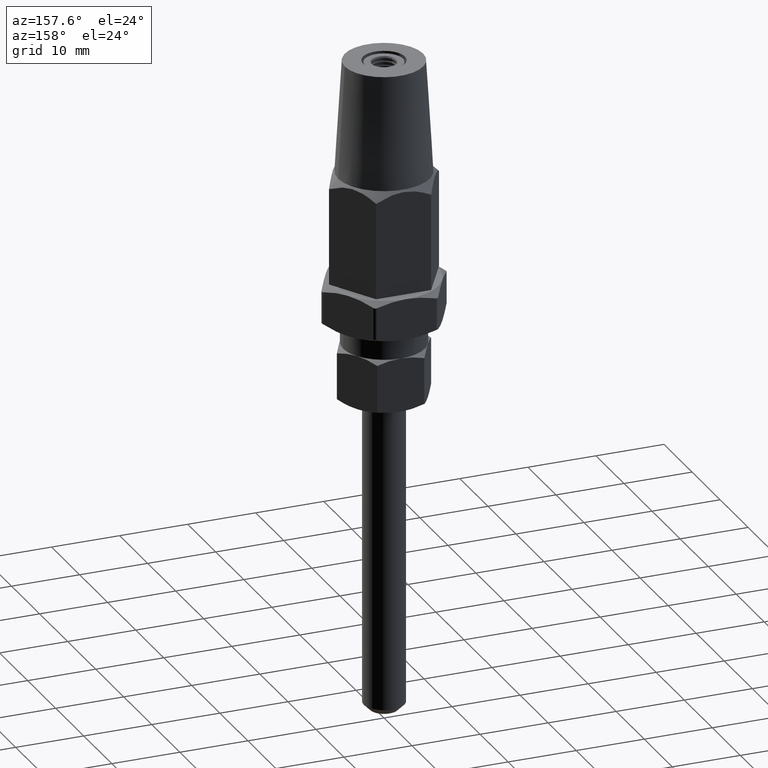
[diagram: clean part render]
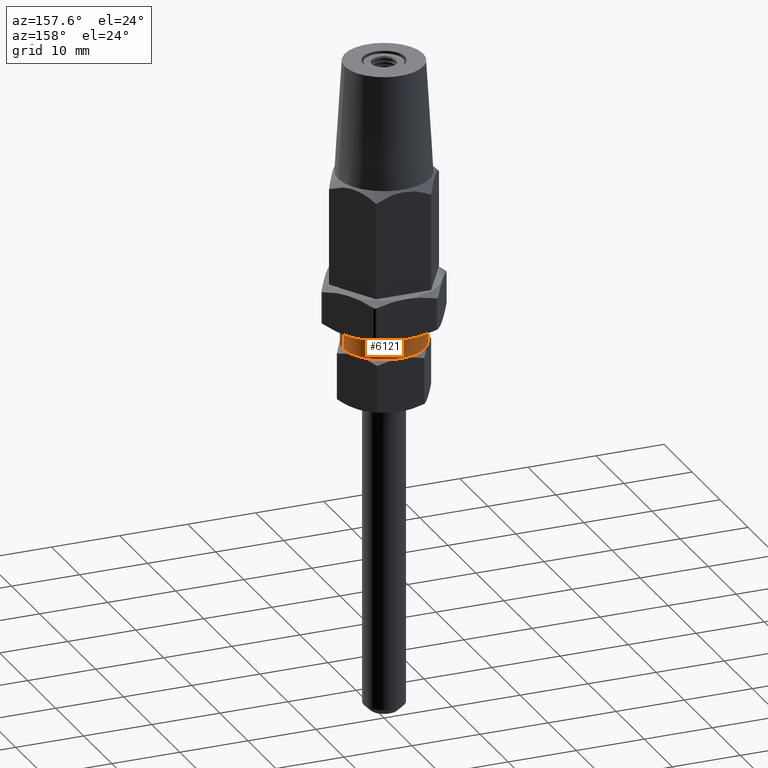
[diagram: same view with one face highlighted and labeled with its STEP entity id]
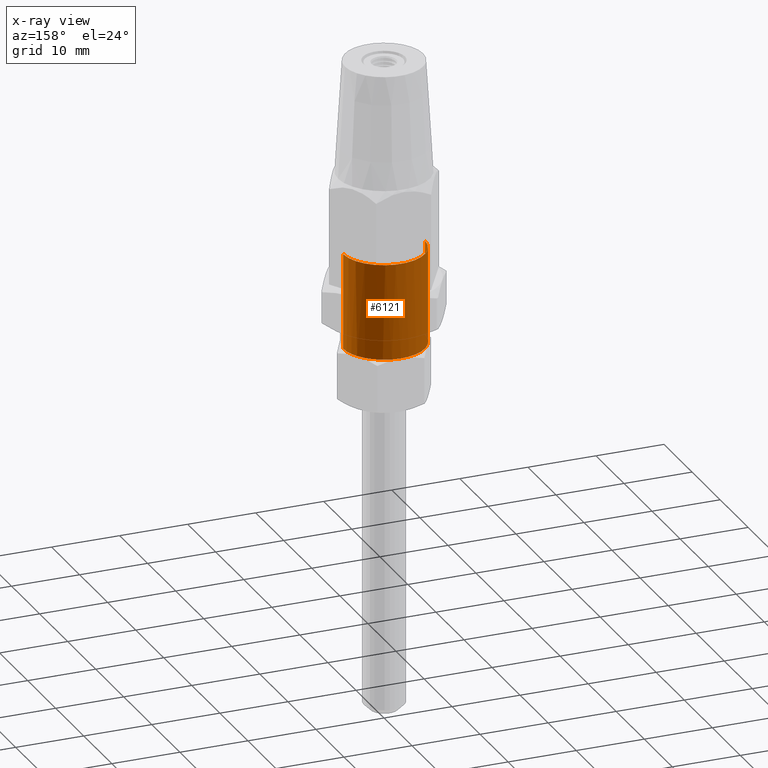
[diagram: x-ray of the same camera — body ghosted, the highlighted face saturated]
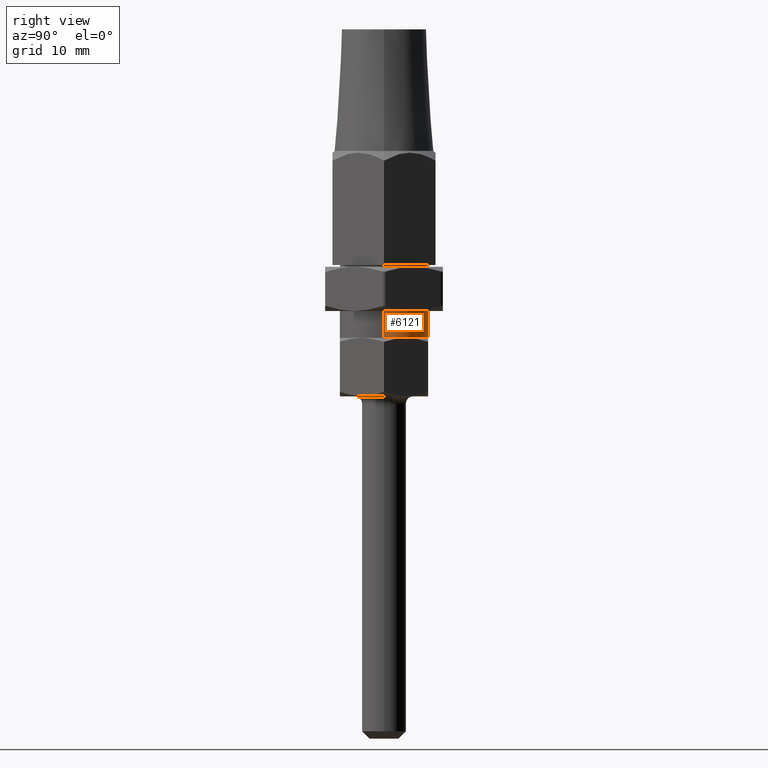
[diagram: same view with one face highlighted and labeled with its STEP entity id]
A machine part, auxiliary view. The second image highlights one B-rep face of the part: STEP entity #6121.
The next image is the same camera in x-ray: the body ghosted, the highlighted face saturated — about 0% of this face is hidden behind the body in this view.
A second angle (right view) of the same face is appended — the face is thin or edge-on in the first view.
In plain terms, the highlighted cylindrical surface (partial cylindrical patch) has radius 6 mm, axis along (0, 0, 1).
Its self-contained STEP definition (entity closure, byte-faithful):
#48 = CARTESIAN_POINT ( 'NONE',  ( -5.196152422706632900, 2.999999999999999600, 3.942264973081039500 ) ) ;
#390 = AXIS2_PLACEMENT_3D ( 'NONE', #5920, #7233, #1737 ) ;
#551 = DIRECTION ( 'NONE',  ( 1.000000000000000000, 0.0000000000000000000, 0.0000000000000000000 ) ) ;
#608 = CARTESIAN_POINT ( 'NONE',  ( 0.0000000000000000000, -9.080037353748498200E-016, 3.942264973081038600 ) ) ;
#1737 = DIRECTION ( 'NONE',  ( 1.000000000000000000, 0.0000000000000000000, 0.0000000000000000000 ) ) ;
#2018 = AXIS2_PLACEMENT_3D ( 'NONE', #12012, #13578, #9437 ) ;
#2391 = DIRECTION ( 'NONE',  ( 0.0000000000000000000, -2.303253945574359900E-016, 1.000000000000000000 ) ) ;
#2488 = DIRECTION ( 'NONE',  ( 0.0000000000000000000, 0.0000000000000000000, 1.000000000000000000 ) ) ;
#2751 = CARTESIAN_POINT ( 'NONE',  ( 5.196152422706631100, 3.000000000000001800, 3.942264973081039500 ) ) ;
#2947 = CARTESIAN_POINT ( 'NONE',  ( -6.000000000000000900, 7.347880794884119700E-016, 17.99999999991541700 ) ) ;
#4022 = EDGE_CURVE ( 'NONE', #9147, #5969, #16246, .T. ) ;
#4419 = CIRCLE ( 'NONE', #11511, 6.000000000000000900 ) ;
#4733 = ORIENTED_EDGE ( 'NONE', *, *, #12068, .T. ) ;
#4766 = LINE ( 'NONE', #13563, #17383 ) ;
#5069 = CARTESIAN_POINT ( 'NONE',  ( -6.000000000000000900, 7.347880794884119700E-016, -500000.0000000000600 ) ) ;
#5092 = EDGE_CURVE ( 'NONE', #17353, #9147, #4419, .T. ) ;
#5341 = DIRECTION ( 'NONE',  ( 0.0000000000000000000, 0.0000000000000000000, 1.000000000000000000 ) ) ;
#5920 = CARTESIAN_POINT ( 'NONE',  ( 0.0000000000000000000, 0.0000000000000000000, -500000.0000000000600 ) ) ;
#5956 = DIRECTION ( 'NONE',  ( 0.0000000000000000000, 1.000000000000000000, 2.891205793294677800E-016 ) ) ;
#5969 = VERTEX_POINT ( 'NONE', #2947 ) ;
#6028 = DIRECTION ( 'NONE',  ( 0.0000000000000000000, 1.000000000000000000, 2.891205793294677800E-016 ) ) ;
#6121 = ADVANCED_FACE ( 'NONE', ( #14634 ), #15240, .T. ) ;
#6143 = CIRCLE ( 'NONE', #8558, 6.000000000000000900 ) ;
#6269 = ORIENTED_EDGE ( 'NONE', *, *, #5092, .T. ) ;
#6284 = EDGE_CURVE ( 'NONE', #5969, #10692, #10104, .T. ) ;
#6436 = ORIENTED_EDGE ( 'NONE', *, *, #16396, .F. ) ;
#7233 = DIRECTION ( 'NONE',  ( 0.0000000000000000000, 0.0000000000000000000, 1.000000000000000000 ) ) ;
#7802 = CARTESIAN_POINT ( 'NONE',  ( 0.0000000000000000000, -9.080037353748498200E-016, 3.942264973081038600 ) ) ;
#8034 = DIRECTION ( 'NONE',  ( 1.776356839400250500E-015, 1.000000000000000000, 2.891205793294677800E-016 ) ) ;
#8043 = AXIS2_PLACEMENT_3D ( 'NONE', #11457, #13019, #551 ) ;
#8540 = EDGE_CURVE ( 'NONE', #13491, #14242, #13926, .T. ) ;
#8558 = AXIS2_PLACEMENT_3D ( 'NONE', #7802, #2391, #8034 ) ;
#9147 = VERTEX_POINT ( 'NONE', #14077 ) ;
#9201 = VERTEX_POINT ( 'NONE', #16186 ) ;
#9437 = DIRECTION ( 'NONE',  ( -8.881784197001252300E-016, 1.000000000000000000, 2.891205793294677800E-016 ) ) ;
#9975 = AXIS2_PLACEMENT_3D ( 'NONE', #608, #17077, #5956 ) ;
#10104 = CIRCLE ( 'NONE', #8043, 6.000000000000000900 ) ;
#10659 = EDGE_CURVE ( 'NONE', #9201, #13491, #6143, .T. ) ;
#10692 = VERTEX_POINT ( 'NONE', #12028 ) ;
#10787 = ORIENTED_EDGE ( 'NONE', *, *, #6284, .T. ) ;
#11457 = CARTESIAN_POINT ( 'NONE',  ( 0.0000000000000000000, 0.0000000000000000000, 17.99999999991541700 ) ) ;
#11511 = AXIS2_PLACEMENT_3D ( 'NONE', #11553, #15845, #6028 ) ;
#11553 = CARTESIAN_POINT ( 'NONE',  ( 0.0000000000000000000, -9.080037353748498200E-016, 3.942264973081038600 ) ) ;
#12012 = CARTESIAN_POINT ( 'NONE',  ( 0.0000000000000000000, -9.080037353748498200E-016, 3.942264973081038600 ) ) ;
#12028 = CARTESIAN_POINT ( 'NONE',  ( 6.000000000000000900, 0.0000000000000000000, 17.99999999991541700 ) ) ;
#12068 = EDGE_CURVE ( 'NONE', #14242, #17353, #16576, .T. ) ;
#12916 = CARTESIAN_POINT ( 'NONE',  ( -7.511572997462304000E-016, 5.999999999999999100, 3.942264973081040400 ) ) ;
#13019 = DIRECTION ( 'NONE',  ( 0.0000000000000000000, 0.0000000000000000000, -1.000000000000000000 ) ) ;
#13484 = ORIENTED_EDGE ( 'NONE', *, *, #4022, .T. ) ;
#13491 = VERTEX_POINT ( 'NONE', #2751 ) ;
#13563 = CARTESIAN_POINT ( 'NONE',  ( 6.000000000000000900, 0.0000000000000000000, -500000.0000000000600 ) ) ;
#13578 = DIRECTION ( 'NONE',  ( 0.0000000000000000000, -2.303253945574359900E-016, 1.000000000000000000 ) ) ;
#13926 = CIRCLE ( 'NONE', #2018, 6.000000000000000900 ) ;
#14077 = CARTESIAN_POINT ( 'NONE',  ( -6.000000000000000900, 7.347880794884122700E-016, 3.942264973081038600 ) ) ;
#14242 = VERTEX_POINT ( 'NONE', #12916 ) ;
#14402 = ORIENTED_EDGE ( 'NONE', *, *, #10659, .T. ) ;
#14634 = FACE_OUTER_BOUND ( 'NONE', #14939, .T. ) ;
#14939 = EDGE_LOOP ( 'NONE', ( #6269, #13484, #10787, #6436, #14402, #15043, #4733 ) ) ;
#15043 = ORIENTED_EDGE ( 'NONE', *, *, #8540, .T. ) ;
#15240 = CYLINDRICAL_SURFACE ( 'NONE', #390, 6.000000000000000900 ) ;
#15815 = VECTOR ( 'NONE', #2488, 1000.000000000000000 ) ;
#15845 = DIRECTION ( 'NONE',  ( 0.0000000000000000000, -2.303253945574359900E-016, 1.000000000000000000 ) ) ;
#16186 = CARTESIAN_POINT ( 'NONE',  ( 6.000000000000000900, 1.925929944387235900E-031, 3.942264973081038600 ) ) ;
#16246 = LINE ( 'NONE', #5069, #15815 ) ;
#16396 = EDGE_CURVE ( 'NONE', #9201, #10692, #4766, .T. ) ;
#16576 = CIRCLE ( 'NONE', #9975, 6.000000000000000900 ) ;
#17077 = DIRECTION ( 'NONE',  ( 0.0000000000000000000, -2.303253945574359900E-016, 1.000000000000000000 ) ) ;
#17353 = VERTEX_POINT ( 'NONE', #48 ) ;
#17383 = VECTOR ( 'NONE', #5341, 1000.000000000000000 ) ;